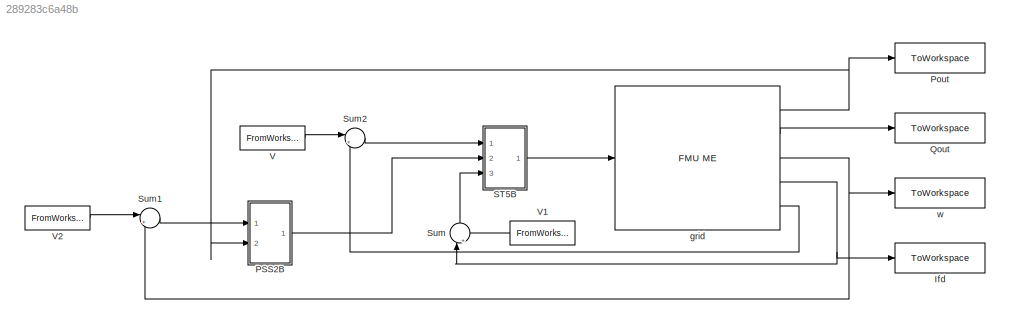
MODEL slx_289283c6a48b
KIND model
CONFIG AbsTol = auto
CONFIG EnableMultiTasking = off
CONFIG FixedStep = 0.005
CONFIG MaxStep = auto
CONFIG MinStep = auto
CONFIG RelTol = 1e-3
CONFIG SampleTimeConstraint = Unconstrained
CONFIG Solver = FixedStepAuto
CONFIG SolverName = FixedStepAuto
CONFIG StartTime = 0.0
CONFIG StopTime = 7.5
BLOCK [ToWorkspace] Ifd
  FixptAsFi = on
  MaxDataPoints = inf
  Ports = [1]
  SampleTime = -1
  SaveFormat = Timeseries
  VariableName = Ifd
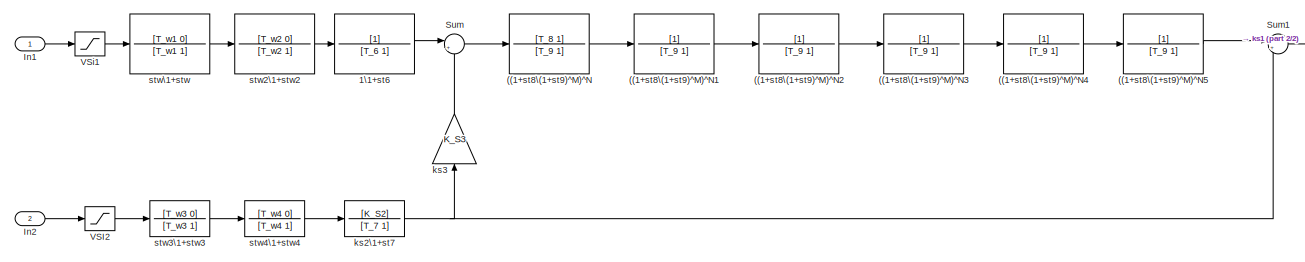
[diagram: PSS2B - part 1/2, center side, full height]
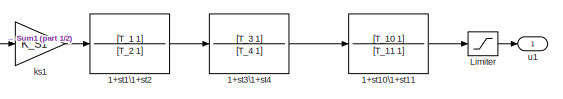
[diagram: PSS2B - part 2/2, top right region]
BLOCK [SubSystem] PSS2B
  Ports = [2, 1]
  RequestExecContextInheritance = off
BLOCK [TransferFcn] PSS2B/((1+st8\(1+st9)^M)^N
  Denominator = [T_9 1]
  Numerator = [T_8 1]
BLOCK [TransferFcn] PSS2B/((1+st8\(1+st9)^M)^N1
  Denominator = [T_9 1]
BLOCK [TransferFcn] PSS2B/((1+st8\(1+st9)^M)^N2
  Denominator = [T_9 1]
BLOCK [TransferFcn] PSS2B/((1+st8\(1+st9)^M)^N3
  Denominator = [T_9 1]
BLOCK [TransferFcn] PSS2B/((1+st8\(1+st9)^M)^N4
  Denominator = [T_9 1]
BLOCK [TransferFcn] PSS2B/((1+st8\(1+st9)^M)^N5
  Denominator = [T_9 1]
BLOCK [TransferFcn] PSS2B/1+st10\1+st11
  Denominator = [T_11 1]
  Numerator = [T_10 1]
BLOCK [TransferFcn] PSS2B/1+st1\1+st2
  Denominator = [T_2 1]
  Numerator = [T_1 1]
BLOCK [TransferFcn] PSS2B/1+st3\1+st4
  Denominator = [T_4 1]
  Numerator = [T_3 1]
BLOCK [TransferFcn] PSS2B/1\1+st6
  Denominator = [T_6 1]
BLOCK [Inport] PSS2B/In1
BLOCK [Inport] PSS2B/In2
  Port = 2
BLOCK [Saturate] PSS2B/Limiter 
  LowerLimit = V_STMIN
  UpperLimit = V_STMAX
BLOCK [Sum] PSS2B/Sum
  Inputs = |++
  Ports = [2, 1]
BLOCK [Sum] PSS2B/Sum1
  Inputs = |+-
  Ports = [2, 1]
BLOCK [Saturate] PSS2B/VSI2
  LowerLimit = V_S2MIN
  UpperLimit = V_S2MAX
BLOCK [Saturate] PSS2B/VSi1
  LowerLimit = V_S1MIN
  UpperLimit = V_S1MAX
BLOCK [Gain] PSS2B/ks1
  Gain = K_S1
  OutDataTypeStr = Inherit: Same as input
  ParamDataTypeStr = Inherit: Same as input
  SaturateOnIntegerOverflow = on
BLOCK [TransferFcn] PSS2B/ks2\1+st7
  Denominator = [T_7 1]
  Numerator = [K_S2]
BLOCK [Gain] PSS2B/ks3
  Gain = K_S3
  NameLocation = right
  OutDataTypeStr = Inherit: Same as input
  ParamDataTypeStr = Inherit: Same as input
  SaturateOnIntegerOverflow = on
BLOCK [TransferFcn] PSS2B/stw2\1+stw2
  Denominator = [T_w2 1]
  Numerator = [T_w2 0]
BLOCK [TransferFcn] PSS2B/stw3\1+stw3
  Denominator = [T_w3 1]
  Numerator = [T_w3 0]
BLOCK [TransferFcn] PSS2B/stw4\1+stw4
  Denominator = [T_w4 1]
  Numerator = [T_w4 0]
BLOCK [TransferFcn] PSS2B/stw\1+stw
  Denominator = [T_w1 1]
  Numerator = [T_w1 0]
BLOCK [Outport] PSS2B/u1
BLOCK [ToWorkspace] Pout
  FixptAsFi = on
  MaxDataPoints = inf
  Ports = [1]
  SampleTime = -1
  SaveFormat = Timeseries
  VariableName = Pout
BLOCK [ToWorkspace] Qout
  FixptAsFi = on
  MaxDataPoints = inf
  Ports = [1]
  SampleTime = -1
  SaveFormat = Timeseries
  VariableName = Qout
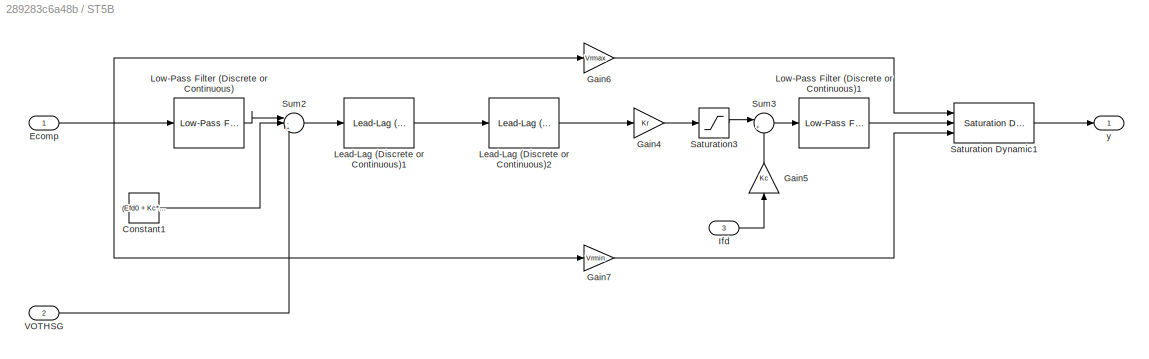
BLOCK [SubSystem] ST5B
  Ports = [3, 1]
  RequestExecContextInheritance = off
BLOCK [Constant] ST5B/Constant1
  Value = (Efd0 + Kc*XadIfd)/Kr + Vinit
BLOCK [Inport] ST5B/Ecomp
BLOCK [Gain] ST5B/Gain4
  Gain = Kr
BLOCK [Gain] ST5B/Gain5
  Gain = Kc
  NameLocation = right
BLOCK [Gain] ST5B/Gain6
  Gain = Vrmax
BLOCK [Gain] ST5B/Gain7
  Gain = Vrmin
BLOCK [Inport] ST5B/Ifd
  Port = 3
BLOCK [Reference] ST5B/Lead-Lag (Discrete or Continuous)1  REF=eeGeneralControl/Lead-Lag
(Discrete or Continuous)
  Ports = [1, 1]
  SourceBlock = eeGeneralControl/Lead-Lag\n(Discrete or Continuous)
  SourceProductBaseCode = PS
  SourceType = Lead-Lag (Discrete or Continuous)
BLOCK [Reference] ST5B/Lead-Lag (Discrete or Continuous)2  REF=eeGeneralControl/Lead-Lag
(Discrete or Continuous)
  Ports = [1, 1]
  SourceBlock = eeGeneralControl/Lead-Lag\n(Discrete or Continuous)
  SourceProductBaseCode = PS
  SourceType = Lead-Lag (Discrete or Continuous)
BLOCK [Reference] ST5B/Low-Pass Filter (Discrete or Continuous)  REF=eeGeneralControl/Low-Pass Filter
(Discrete or Continuous)
  Ports = [1, 1]
  SourceBlock = eeGeneralControl/Low-Pass Filter\n(Discrete or Continuous)
  SourceProductBaseCode = PS
  SourceType = Low-Pass Filter (Discrete or Continuous)
BLOCK [Reference] ST5B/Low-Pass Filter (Discrete or Continuous)1  REF=eeGeneralControl/Low-Pass Filter
(Discrete or Continuous)
  Ports = [1, 1]
  SourceBlock = eeGeneralControl/Low-Pass Filter\n(Discrete or Continuous)
  SourceProductBaseCode = PS
  SourceType = Low-Pass Filter (Discrete or Continuous)
BLOCK [Reference] ST5B/Saturation Dynamic1  REF=simulink/Discontinuities/Saturation
Dynamic
  Ports = [3, 1]
  SourceBlock = simulink/Discontinuities/Saturation\nDynamic
  SourceProductBaseCode = SL
  SourceType = Saturation Dynamic
BLOCK [Saturate] ST5B/Saturation3
  LinearizeAsGain = off
  LowerLimit = Vrmin
  UpperLimit = Vrmax
BLOCK [Sum] ST5B/Sum2
  Inputs = |-++
  Ports = [3, 1]
BLOCK [Sum] ST5B/Sum3
  Inputs = |+-
  Ports = [2, 1]
BLOCK [Inport] ST5B/VOTHSG
  Port = 2
BLOCK [Outport] ST5B/y
BLOCK [Sum] Sum
  Inputs = |++
  NameLocation = left
  Ports = [2, 1]
BLOCK [Sum] Sum1
  Inputs = |++
  NameLocation = top
  Ports = [2, 1]
BLOCK [Sum] Sum2
  Inputs = |++
  NameLocation = top
  Ports = [2, 1]
BLOCK [FromWorkspace] V
  VariableName = r3
BLOCK [FromWorkspace] V1
  VariableName = r1
BLOCK [FromWorkspace] V2
  VariableName = r2
BLOCK [Reference] grid  REF=fmu_me_lib/FMU ME
  Description = Simulates an FMU for Model Exchange 1.0 or Model Exchange 2.0.
  Ports = [1, 5]
  SourceBlock = fmu_me_lib/FMU ME
  UserDataPersistent = on
BLOCK [ToWorkspace] w
  FixptAsFi = on
  MaxDataPoints = inf
  Ports = [1]
  SampleTime = -1
  SaveFormat = Timeseries
  VariableName = w
LINE PSS2B/((1+st8\(1+st9)^M)^N1:1 -> PSS2B/((1+st8\(1+st9)^M)^N2:1
LINE PSS2B/((1+st8\(1+st9)^M)^N2:1 -> PSS2B/((1+st8\(1+st9)^M)^N3:1
LINE PSS2B/((1+st8\(1+st9)^M)^N3:1 -> PSS2B/((1+st8\(1+st9)^M)^N4:1
LINE PSS2B/((1+st8\(1+st9)^M)^N4:1 -> PSS2B/((1+st8\(1+st9)^M)^N5:1
LINE PSS2B/((1+st8\(1+st9)^M)^N5:1 -> PSS2B/Sum1:1
LINE PSS2B/((1+st8\(1+st9)^M)^N:1 -> PSS2B/((1+st8\(1+st9)^M)^N1:1
LINE PSS2B/1+st10\1+st11:1 -> PSS2B/Limiter :1
LINE PSS2B/1+st1\1+st2:1 -> PSS2B/1+st3\1+st4:1
LINE PSS2B/1+st3\1+st4:1 -> PSS2B/1+st10\1+st11:1
LINE PSS2B/1\1+st6:1 -> PSS2B/Sum:1
LINE PSS2B/In1:1 -> PSS2B/VSi1:1
LINE PSS2B/In2:1 -> PSS2B/VSI2:1
LINE PSS2B/Limiter :1 -> PSS2B/u1:1
LINE PSS2B/Sum1:1 -> PSS2B/ks1:1
LINE PSS2B/Sum:1 -> PSS2B/((1+st8\(1+st9)^M)^N:1
LINE PSS2B/VSI2:1 -> PSS2B/stw3\1+stw3:1
LINE PSS2B/VSi1:1 -> PSS2B/stw\1+stw:1
LINE PSS2B/ks1:1 -> PSS2B/1+st1\1+st2:1
NET PSS2B/ks2\1+st7:1 -> PSS2B/Sum1:2, PSS2B/ks3:1
LINE PSS2B/ks3:1 -> PSS2B/Sum:2
LINE PSS2B/stw2\1+stw2:1 -> PSS2B/1\1+st6:1
LINE PSS2B/stw3\1+stw3:1 -> PSS2B/stw4\1+stw4:1
LINE PSS2B/stw4\1+stw4:1 -> PSS2B/ks2\1+st7:1
LINE PSS2B/stw\1+stw:1 -> PSS2B/stw2\1+stw2:1
LINE PSS2B:1 -> ST5B:2
LINE ST5B/Constant1:1 -> ST5B/Sum2:2
NET ST5B/Ecomp:1 -> ST5B/Gain6:1, ST5B/Gain7:1, ST5B/Low-Pass Filter (Discrete or Continuous):1
LINE ST5B/Gain4:1 -> ST5B/Saturation3:1
LINE ST5B/Gain5:1 -> ST5B/Sum3:2
LINE ST5B/Gain6:1 -> ST5B/Saturation Dynamic1:1
LINE ST5B/Gain7:1 -> ST5B/Saturation Dynamic1:3
LINE ST5B/Ifd:1 -> ST5B/Gain5:1
LINE ST5B/Lead-Lag (Discrete or Continuous)1:1 -> ST5B/Lead-Lag (Discrete or Continuous)2:1
LINE ST5B/Lead-Lag (Discrete or Continuous)2:1 -> ST5B/Gain4:1
LINE ST5B/Low-Pass Filter (Discrete or Continuous)1:1 -> ST5B/Saturation Dynamic1:2
LINE ST5B/Low-Pass Filter (Discrete or Continuous):1 -> ST5B/Sum2:1
LINE ST5B/Saturation Dynamic1:1 -> ST5B/y:1
LINE ST5B/Saturation3:1 -> ST5B/Sum3:1
LINE ST5B/Sum2:1 -> ST5B/Lead-Lag (Discrete or Continuous)1:1
LINE ST5B/Sum3:1 -> ST5B/Low-Pass Filter (Discrete or Continuous)1:1
LINE ST5B/VOTHSG:1 -> ST5B/Sum2:3
LINE ST5B:1 -> grid:1
LINE Sum1:1 -> PSS2B:1
LINE Sum2:1 -> ST5B:1
LINE Sum:1 -> ST5B:3
LINE V1:1 -> Sum:2
LINE V2:1 -> Sum1:1
LINE V:1 -> Sum2:1
NET grid:1 -> PSS2B:2, Pout:1
LINE grid:2 -> Qout:1
NET grid:3 -> Sum1:2, w:1
NET grid:4 -> Ifd:1, Sum:1
LINE grid:5 -> Sum2:2
note: NET lines group one-source signal fan-out (src -> all destinations, sorted); 1:1 wires keep LINE
